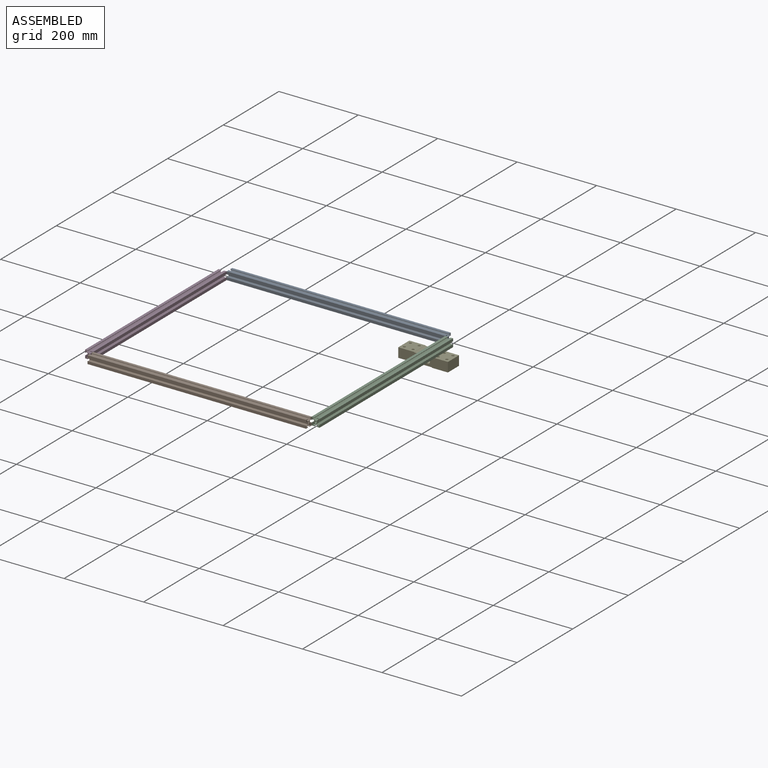
[diagram: assembled view]
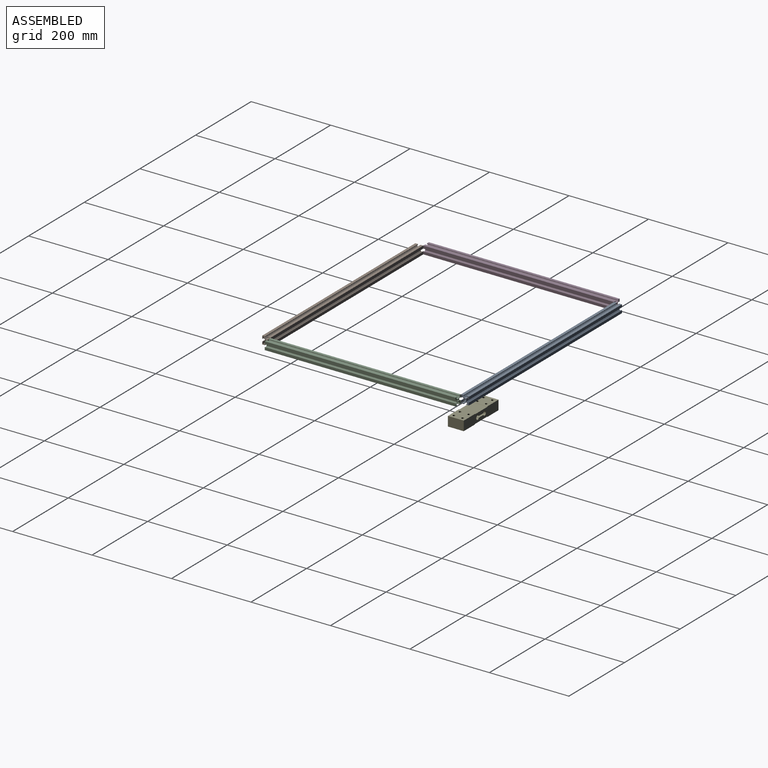
[diagram: assembled view, second angle]
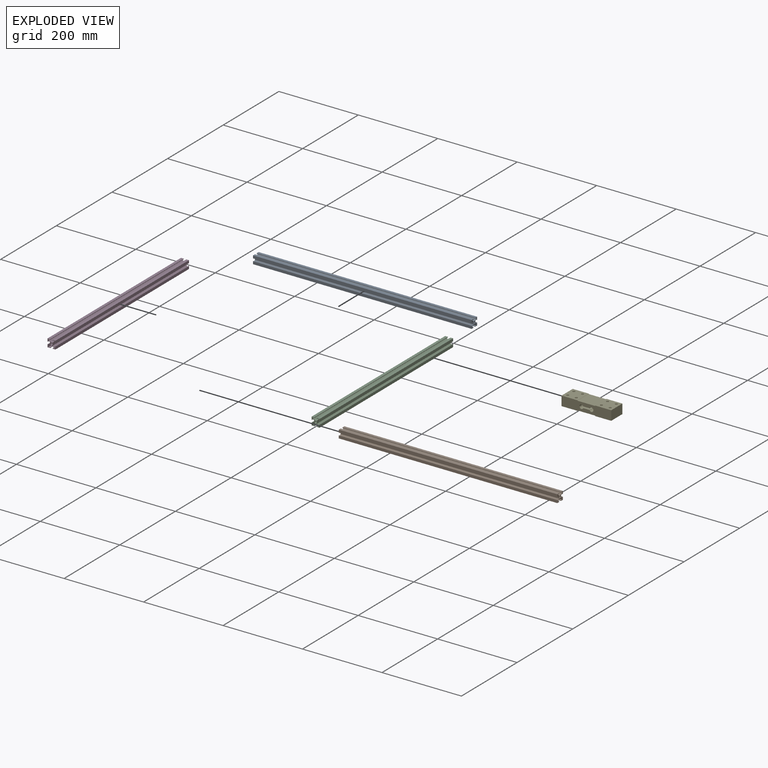
[diagram: exploded view]
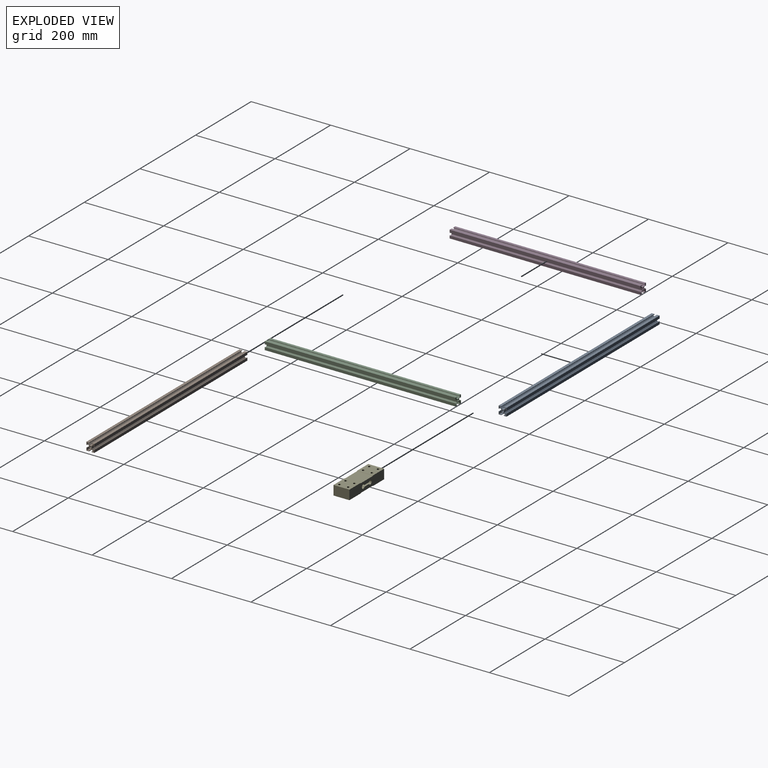
[diagram: exploded view, second angle]
ASSEMBLY  parts=5 mates=3
PART A: 39 faces, bbox 20x20x550 mm
  f0: plane 550x5.02mm, normal (1,0,0), area 2761.1mm2, adj f1,f36,f37,f38
  f1: plane 550x5.1mm, normal (0.71,-0.71,0), area 3966.9mm2, adj f0,f2,f37,f38
  f2: plane 550x4.41mm, normal (-1,0,0), area 2425.5mm2, adj f1,f3,f37,f38
  f3: plane 550x1.4mm, normal (0,-1,0), area 770mm2, adj f2,f4,f37,f38
  f4: plane 550x6.8mm, normal (1,0,0), area 3740mm2, adj f3,f5,f37,f38
  f5: plane 550x6.8mm, normal (0,1,0), area 3740mm2, adj f4,f6,f37,f38
  f6: plane 550x1.4mm, normal (-1,0,0), area 770mm2, adj f5,f7,f37,f38
  f7: plane 550x4.41mm, normal (0,-1,0), area 2425.5mm2, adj f6,f8,f37,f38
  f8: plane 550x5.1mm, normal (-0.71,0.71,0), area 3966.9mm2, adj f7,f9,f37,f38
  f9: plane 550x5.02mm, normal (0,1,0), area 2761.1mm2, adj f8,f10,f37,f38
  f10: plane 550x5.1mm, normal (0.71,0.71,0), area 3966.9mm2, adj f9,f11,f37,f38
  f11: plane 550x4.41mm, normal (0,-1,0), area 2425.5mm2, adj f10,f12,f37,f38
  f12: plane 550x1.4mm, normal (1,0,0), area 770mm2, adj f11,f13,f37,f38
  f13: plane 550x6.8mm, normal (0,1,0), area 3740mm2, adj f12,f14,f37,f38
  f14: plane 550x6.8mm, normal (-1,0,0), area 3740mm2, adj f13,f15,f37,f38
  f15: plane 550x1.4mm, normal (0,-1,0), area 770mm2, adj f14,f16,f37,f38
  f16: plane 550x4.41mm, normal (1,0,0), area 2425.5mm2, adj f15,f17,f37,f38
  f17: plane 550x5.1mm, normal (-0.71,-0.71,0), area 3966.9mm2, adj f16,f18,f37,f38
  f18: plane 550x4.89mm, normal (-1,0,0), area 2691.7mm2, adj f17,f19,f37,f38
  f19: plane 550x5.23mm, normal (-0.72,0.7,0), area 4016.2mm2, adj f18,f20,f37,f38
  f20: plane 550x4.41mm, normal (1,0,0), area 2425.5mm2, adj f19,f21,f37,f38
  f21: plane 550x1.4mm, normal (0,1,0), area 770mm2, adj f20,f22,f37,f38
  f22: plane 550x6.8mm, normal (-1,0,0), area 3740mm2, adj f21,f23,f37,f38
  f23: plane 550x6.8mm, normal (0,-1,0), area 3740mm2, adj f22,f24,f37,f38
  f24: plane 550x1.4mm, normal (1,0,0), area 770mm2, adj f23,f25,f37,f38
  f25: plane 550x4.41mm, normal (0,1,0), area 2425.5mm2, adj f24,f26,f37,f38
  f26: plane 550x5.1mm, normal (0.71,-0.71,0), area 3966.9mm2, adj f25,f27,f37,f38
  f27: plane 550x5.02mm, normal (0,-1,0), area 2761.1mm2, adj f26,f28,f37,f38
  f28: plane 550x5.1mm, normal (-0.71,-0.71,0), area 3966.9mm2, adj f27,f29,f37,f38
  f29: plane 550x4.41mm, normal (0,1,0), area 2425.5mm2, adj f28,f30,f37,f38
  f30: plane 550x1.4mm, normal (-1,0,0), area 770mm2, adj f29,f31,f37,f38
  f31: plane 550x6.8mm, normal (0,-1,0), area 3740mm2, adj f30,f32,f37,f38
  f32: plane 550x6.8mm, normal (1,0,0), area 3740mm2, adj f31,f33,f37,f38
  f33: plane 550x1.4mm, normal (0,1,0), area 770mm2, adj f32,f34,f37,f38
  f34: plane 550x4.41mm, normal (-1,0,0), area 2425.5mm2, adj f33,f36,f37,f38
  f35: cylinder r=2.5mm len=550mm, axis (0,0,-1), area 8639.4mm2, adj f37,f38
  f36: plane 550x5.1mm, normal (0.71,0.71,0), area 3966.9mm2, adj f0,f34,f37,f38
  f37: plane 20x20mm, normal (0,0,1), area 138.4mm2, adj f0,f1,f2,f3,f4,f5,f6,f7
  f38: plane 20x20mm, normal (0,0,-1), area 138.4mm2, adj f0,f1,f2,f3,f4,f5,f6,f7
PART B: same geometry as A
PART C: 39 faces, bbox 20x20x480 mm
  f0: plane 480x5.02mm, normal (1,0,0), area 2409.6mm2, adj f1,f36,f37,f38
  f1: plane 480x5.1mm, normal (0.71,-0.71,0), area 3462mm2, adj f0,f2,f37,f38
  f2: plane 480x4.41mm, normal (-1,0,0), area 2116.8mm2, adj f1,f3,f37,f38
  f3: plane 480x1.4mm, normal (0,-1,0), area 672mm2, adj f2,f4,f37,f38
  f4: plane 480x6.8mm, normal (1,0,0), area 3264mm2, adj f3,f5,f37,f38
  f5: plane 480x6.8mm, normal (0,1,0), area 3264mm2, adj f4,f6,f37,f38
  f6: plane 480x1.4mm, normal (-1,0,0), area 672mm2, adj f5,f7,f37,f38
  f7: plane 480x4.41mm, normal (0,-1,0), area 2116.8mm2, adj f6,f8,f37,f38
  f8: plane 480x5.1mm, normal (-0.71,0.71,0), area 3462mm2, adj f7,f9,f37,f38
  f9: plane 480x5.02mm, normal (0,1,0), area 2409.6mm2, adj f8,f10,f37,f38
  f10: plane 480x5.1mm, normal (0.71,0.71,0), area 3462mm2, adj f9,f11,f37,f38
  f11: plane 480x4.41mm, normal (0,-1,0), area 2116.8mm2, adj f10,f12,f37,f38
  f12: plane 480x1.4mm, normal (1,0,0), area 672mm2, adj f11,f13,f37,f38
  f13: plane 480x6.8mm, normal (0,1,0), area 3264mm2, adj f12,f14,f37,f38
  f14: plane 480x6.8mm, normal (-1,0,0), area 3264mm2, adj f13,f15,f37,f38
  f15: plane 480x1.4mm, normal (0,-1,0), area 672mm2, adj f14,f16,f37,f38
  f16: plane 480x4.41mm, normal (1,0,0), area 2116.8mm2, adj f15,f17,f37,f38
  f17: plane 480x5.1mm, normal (-0.71,-0.71,0), area 3462mm2, adj f16,f18,f37,f38
  f18: plane 480x4.89mm, normal (-1,0,0), area 2349.1mm2, adj f17,f19,f37,f38
  f19: plane 480x5.23mm, normal (-0.72,0.7,0), area 3505.1mm2, adj f18,f20,f37,f38
  f20: plane 480x4.41mm, normal (1,0,0), area 2116.8mm2, adj f19,f21,f37,f38
  f21: plane 480x1.4mm, normal (0,1,0), area 672mm2, adj f20,f22,f37,f38
  f22: plane 480x6.8mm, normal (-1,0,0), area 3264mm2, adj f21,f23,f37,f38
  f23: plane 480x6.8mm, normal (0,-1,0), area 3264mm2, adj f22,f24,f37,f38
  f24: plane 480x1.4mm, normal (1,0,0), area 672mm2, adj f23,f25,f37,f38
  f25: plane 480x4.41mm, normal (0,1,0), area 2116.8mm2, adj f24,f26,f37,f38
  f26: plane 480x5.1mm, normal (0.71,-0.71,0), area 3462mm2, adj f25,f27,f37,f38
  f27: plane 480x5.02mm, normal (0,-1,0), area 2409.6mm2, adj f26,f28,f37,f38
  f28: plane 480x5.1mm, normal (-0.71,-0.71,0), area 3462mm2, adj f27,f29,f37,f38
  f29: plane 480x4.41mm, normal (0,1,0), area 2116.8mm2, adj f28,f30,f37,f38
  f30: plane 480x1.4mm, normal (-1,0,0), area 672mm2, adj f29,f31,f37,f38
  f31: plane 480x6.8mm, normal (0,-1,0), area 3264mm2, adj f30,f32,f37,f38
  f32: plane 480x6.8mm, normal (1,0,0), area 3264mm2, adj f31,f33,f37,f38
  f33: plane 480x1.4mm, normal (0,1,0), area 672mm2, adj f32,f34,f37,f38
  f34: plane 480x4.41mm, normal (-1,0,0), area 2116.8mm2, adj f33,f36,f37,f38
  f35: cylinder r=2.5mm len=480mm, axis (0,0,-1), area 7539.8mm2, adj f37,f38
  f36: plane 480x5.1mm, normal (0.71,0.71,0), area 3462mm2, adj f0,f34,f37,f38
  f37: plane 20x20mm, normal (0,0,1), area 138.4mm2, adj f0,f1,f2,f3,f4,f5,f6,f7
  f38: plane 20x20mm, normal (0,0,-1), area 138.4mm2, adj f0,f1,f2,f3,f4,f5,f6,f7
PART D: same geometry as C
PART E: 26 faces, bbox 125x40x24 mm
  f0: plane 40x40mm, normal (0,0,-1), area 1486.9mm2, adj f1,f3,f4,f6,f7,f8,f13,f22
  f1: plane 125x24mm, normal (0,1,0), area 2693.8mm2, adj f0,f2,f4,f5,f14,f15,f16,f17
  f2: plane 40x40mm, normal (0,0,1), area 1486.9mm2, adj f1,f3,f5,f9,f10,f11,f12,f25
  f3: plane 125x24mm, normal (0,-1,0), area 2693.8mm2, adj f0,f2,f4,f5,f14,f15,f16,f17
  f4: plane 40x24mm, normal (-1,0,0), area 960mm2, adj f0,f1,f3,f14
  f5: plane 40x24mm, normal (1,0,0), area 960mm2, adj f1,f2,f3,f15
  f6: cylinder r=3mm len=24mm, axis (0,0,-1), area 452.4mm2, adj f0,f14
  f7: cylinder r=3mm len=24mm, axis (0,0,-1), area 452.4mm2, adj f0,f14
  f8: cylinder r=3mm len=24mm, axis (0,0,-1), area 452.4mm2, adj f0,f14
  f9: cylinder r=3mm len=24mm, axis (0,0,-1), area 452.4mm2, adj f2,f15
  f10: cylinder r=3mm len=24mm, axis (0,0,-1), area 452.4mm2, adj f2,f15
  f11: cylinder r=3mm len=24mm, axis (0,0,-1), area 452.4mm2, adj f2,f15
  f12: cylinder r=3mm len=24mm, axis (0,0,-1), area 452.4mm2, adj f2,f15
  f13: cylinder r=3mm len=24mm, axis (0,0,-1), area 452.4mm2, adj f0,f14
  f14: plane 40x40mm, normal (0,0,1), area 1486.9mm2, adj f1,f3,f4,f6,f7,f8,f13,f24
  f15: plane 40x40mm, normal (0,0,-1), area 1486.9mm2, adj f1,f3,f5,f9,f10,f11,f12,f23
  f16: plane 40x15.84mm, normal (0,0,-1), area 633.4mm2, adj f1,f3,f17,f19
  f17: cylinder r=5mm len=40mm, axis (0,-1,0), area 1092mm2, adj f1,f3,f16,f18
  f18: plane 40x15.84mm, normal (0,0,1), area 633.4mm2, adj f1,f3,f17,f19
  f19: cylinder r=5mm len=40mm, axis (0,-1,0), area 1092mm2, adj f1,f3,f16,f18
  f20: plane 41.54x40mm, normal (0,0,1), area 1661.4mm2, adj f1,f3,f24,f25
  f21: plane 41.54x40mm, normal (0,0,-1), area 1661.4mm2, adj f1,f3,f22,f23
  f22: cylinder r=2mm len=40mm, axis (0,1,0), area 83.8mm2, adj f0,f1,f3,f21
  f23: cylinder r=2mm len=40mm, axis (0,1,0), area 83.8mm2, adj f1,f3,f15,f21
  f24: cylinder r=2mm len=40mm, axis (0,1,0), area 83.8mm2, adj f1,f3,f14,f20
  f25: cylinder r=2mm len=40mm, axis (0,1,0), area 83.8mm2, adj f1,f2,f3,f20
PLACE A rot(axis=(0.58,0.58,0.58),120deg) t=(-483.55,474.93,-6.66)mm
PLACE B rot(axis=(0.58,0.58,0.58),120deg) t=(-483.55,-25.07,-6.66)mm
PLACE C rot(axis=(1,0,0),90deg) t=(66.45,474.93,-6.66)mm
PLACE D rot(axis=(1,0,0),90deg) t=(-503.55,474.93,-6.66)mm
PLACE E t=(-38.43,455.98,-57.11)mm
MATE fastened A.f37 <-> C.f22  axis (1,0,0) through (66.45,474.93,-6.66)mm
MATE fastened B.f38 <-> D.f32  axis (1,0,0) through (-483.55,-5.07,-6.66)mm
MATE fastened D.f38 <-> A.f22  axis (0,-1,0) through (-483.55,474.93,-6.66)mm
